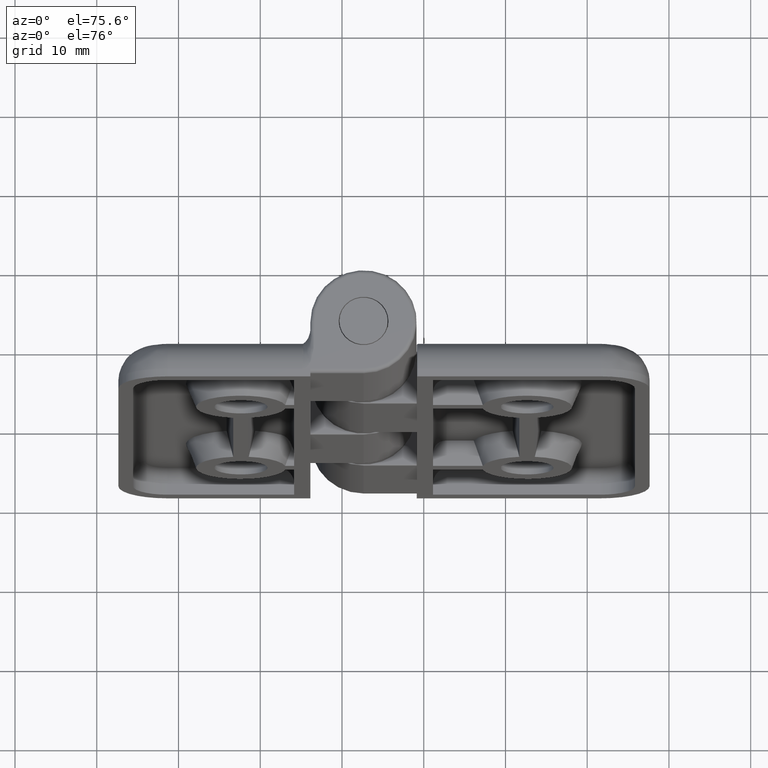
[diagram: clean part render]
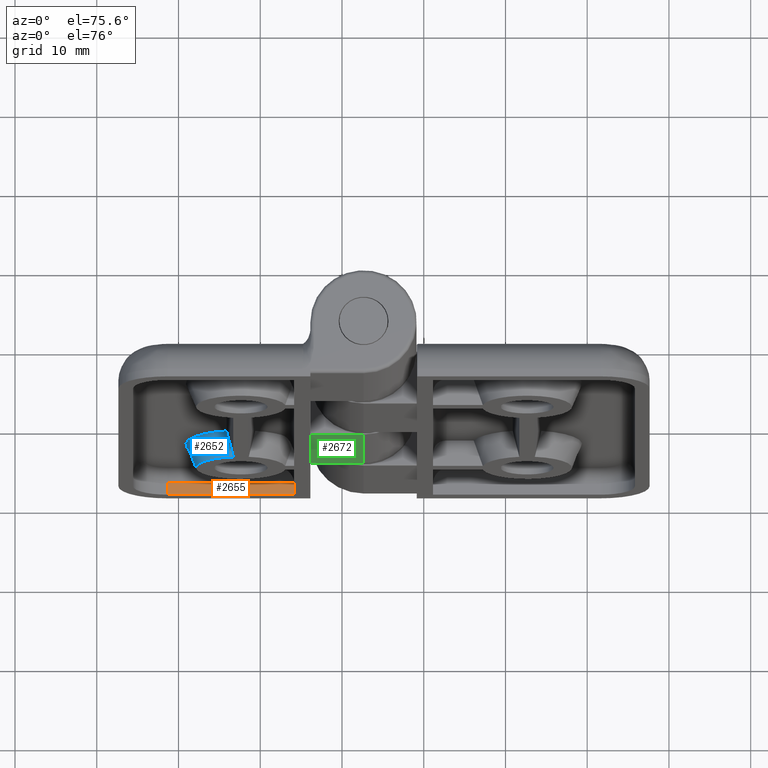
[diagram: same view with three faces highlighted in distinct colors, each labeled with its STEP entity id]
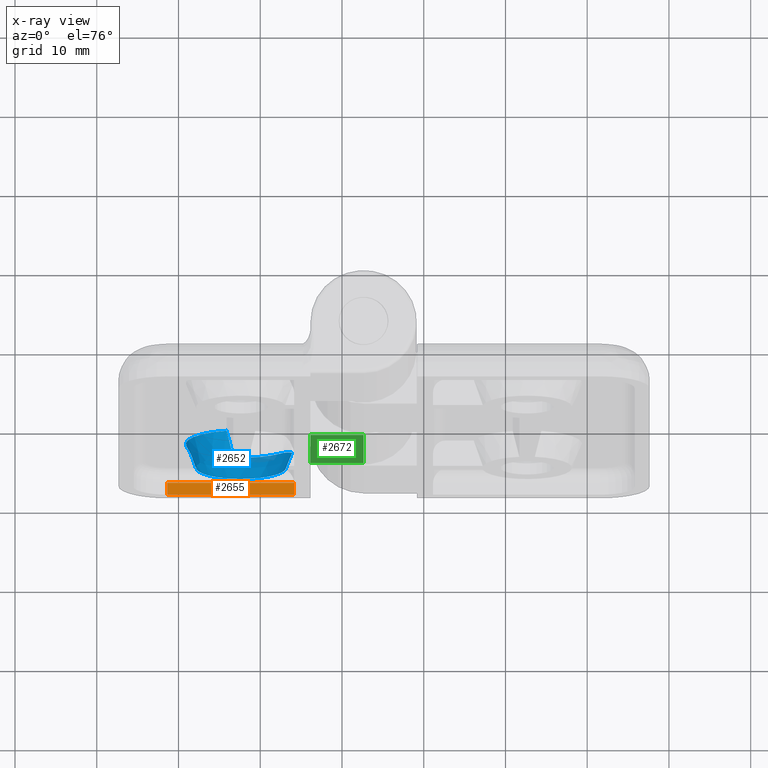
[diagram: x-ray of the same camera — body ghosted, the three highlighted faces saturated]
A machine part, auxiliary view with three faces highlighted in distinct colors.
The next image is the same camera in x-ray (body ghosted, the three faces saturated) — at least one of them is partly hidden behind the body in this view.
Their STEP definitions:

[orange] entity #2655 — the highlighted planar face has unit normal (0, 0, -1).
#127=PLANE('',#2846);
#385=FACE_OUTER_BOUND('',#553,.T.);
#553=EDGE_LOOP('',(#1849,#1850,#1851,#1852));
#781=LINE('',#4094,#959);
#790=LINE('',#4152,#968);
#792=LINE('',#4156,#970);
#793=LINE('',#4157,#971);
#959=VECTOR('',#3194,15.5);
#968=VECTOR('',#3241,1.5);
#970=VECTOR('',#3245,1.5);
#971=VECTOR('',#3246,15.5);
#1151=VERTEX_POINT('',#4072);
#1157=VERTEX_POINT('',#4092);
#1173=VERTEX_POINT('',#4151);
#1174=VERTEX_POINT('',#4155);
#1416=EDGE_CURVE('',#1157,#1151,#781,.T.);
#1439=EDGE_CURVE('',#1173,#1151,#790,.T.);
#1441=EDGE_CURVE('',#1174,#1157,#792,.T.);
#1442=EDGE_CURVE('',#1173,#1174,#793,.T.);
#1849=ORIENTED_EDGE('',*,*,#1416,.F.);
#1850=ORIENTED_EDGE('',*,*,#1441,.F.);
#1851=ORIENTED_EDGE('',*,*,#1442,.F.);
#1852=ORIENTED_EDGE('',*,*,#1439,.T.);
#2655=ADVANCED_FACE('',(#385),#127,.F.);
#2846=AXIS2_PLACEMENT_3D('',#4154,#3243,#3244);
#3194=DIRECTION('',(1.,2.22044604925031E-16,1.07440937866951E-16));
#3241=DIRECTION('',(0.,1.,0.));
#3243=DIRECTION('center_axis',(1.07440937866951E-16,0.,-1.));
#3244=DIRECTION('ref_axis',(-1.,0.,0.));
#3245=DIRECTION('',(0.,1.,0.));
#3246=DIRECTION('',(-1.,-3.30704730739408E-16,-1.07440937866951E-16));
#4072=CARTESIAN_POINT('',(-8.49999999999999,-5.50000000000001,-28.2));
#4092=CARTESIAN_POINT('',(-24.,-5.50000000000001,-28.2));
#4094=CARTESIAN_POINT('',(-13.1997099593932,-5.50000000000001,-28.2));
#4151=CARTESIAN_POINT('',(-8.49999999999999,-7.00000000000001,-28.2));
#4152=CARTESIAN_POINT('',(-8.49999999999999,-7.00000000000001,-28.2));
#4154=CARTESIAN_POINT('Origin',(-8.49999999999999,-7.00000000000001,-28.2));
#4155=CARTESIAN_POINT('',(-24.,-7.00000000000001,-28.2));
#4156=CARTESIAN_POINT('',(-24.,-7.00000000000001,-28.2));
#4157=CARTESIAN_POINT('',(-7.49999999999999,-7.,-28.2));

[blue] entity #2652 — the highlighted conical surface has half-angle 22.62 deg.
#191=CIRCLE('',#2842,5.5);
#192=CIRCLE('',#2843,6.75);
#345=(
BOUNDED_CURVE()
B_SPLINE_CURVE(2,(#4136,#4137,#4138),.UNSPECIFIED.,.F.,.F.)
B_SPLINE_CURVE_WITH_KNOTS((3,3),(0.0713577675570154,0.32952906795331),
 .UNSPECIFIED.)
CURVE()
GEOMETRIC_REPRESENTATION_ITEM()
RATIONAL_B_SPLINE_CURVE((1.00109624690064,1.00253122562395,1.))
REPRESENTATION_ITEM('')
);
#346=(
BOUNDED_CURVE()
B_SPLINE_CURVE(2,(#4142,#4143,#4144),.UNSPECIFIED.,.F.,.F.)
B_SPLINE_CURVE_WITH_KNOTS((3,3),(0.,0.32952906795331),.UNSPECIFIED.)
CURVE()
GEOMETRIC_REPRESENTATION_ITEM()
RATIONAL_B_SPLINE_CURVE((1.,1.00323084873992,1.))
REPRESENTATION_ITEM('')
);
#360=CONICAL_SURFACE('',#2841,6.75,0.394791119699761);
#382=FACE_OUTER_BOUND('',#550,.T.);
#550=EDGE_LOOP('',(#1836,#1837,#1838,#1839,#1840));
#750=B_SPLINE_CURVE_WITH_KNOTS('',3,(#4078,#4079,#4080,#4081,#4082,#4083,
#4084,#4085),.UNSPECIFIED.,.F.,.F.,(4,2,2,4),(-1.83353783690181,-1.72495387393073,
-1.59665591785783,-1.4963452121325),.UNSPECIFIED.);
#1153=VERTEX_POINT('',#4075);
#1154=VERTEX_POINT('',#4077);
#1169=VERTEX_POINT('',#4135);
#1170=VERTEX_POINT('',#4139);
#1171=VERTEX_POINT('',#4141);
#1411=EDGE_CURVE('',#1154,#1153,#750,.T.);
#1433=EDGE_CURVE('',#1153,#1169,#345,.T.);
#1434=EDGE_CURVE('',#1170,#1169,#191,.T.);
#1435=EDGE_CURVE('',#1170,#1171,#346,.T.);
#1436=EDGE_CURVE('',#1154,#1171,#192,.T.);
#1836=ORIENTED_EDGE('',*,*,#1411,.T.);
#1837=ORIENTED_EDGE('',*,*,#1433,.T.);
#1838=ORIENTED_EDGE('',*,*,#1434,.F.);
#1839=ORIENTED_EDGE('',*,*,#1435,.T.);
#1840=ORIENTED_EDGE('',*,*,#1436,.F.);
#2652=ADVANCED_FACE('',(#382),#360,.T.);
#2841=AXIS2_PLACEMENT_3D('',#4134,#3229,#3230);
#2842=AXIS2_PLACEMENT_3D('',#4140,#3231,#3232);
#2843=AXIS2_PLACEMENT_3D('',#4145,#3233,#3234);
#3229=DIRECTION('center_axis',(-2.22044604925031E-16,1.,0.));
#3230=DIRECTION('ref_axis',(-1.,-2.22044604925031E-16,0.));
#3231=DIRECTION('center_axis',(3.30704730739408E-16,-1.,0.));
#3232=DIRECTION('ref_axis',(-1.,-3.30704730739408E-16,0.));
#3233=DIRECTION('center_axis',(-2.22044604925031E-16,1.,0.));
#3234=DIRECTION('ref_axis',(-1.,-2.22044604925031E-16,0.));
#4075=CARTESIAN_POINT('',(-8.73264824739439,-4.69761634166224,-16.5630742646248));
#4077=CARTESIAN_POINT('',(-9.99999999999999,-4.00000000000001,-19.5345892868043));
#4078=CARTESIAN_POINT('Ctrl Pts',(-10.,-4.00000000000001,-19.5345892868043));
#4079=CARTESIAN_POINT('Ctrl Pts',(-9.76114024251889,-4.00000000000001,-19.2712139926225));
#4080=CARTESIAN_POINT('Ctrl Pts',(-9.56772308422603,-4.05245969198098,-18.9846397811656));
#4081=CARTESIAN_POINT('Ctrl Pts',(-9.20839512327924,-4.20834774742976,-18.319888163023));
#4082=CARTESIAN_POINT('Ctrl Pts',(-9.05647074092426,-4.3224626436187,-17.9350167485333));
#4083=CARTESIAN_POINT('Ctrl Pts',(-8.84982100860583,-4.52866251340564,-17.2177563511498));
#4084=CARTESIAN_POINT('Ctrl Pts',(-8.78168779784663,-4.620159180656,-16.8930747303043));
#4085=CARTESIAN_POINT('Ctrl Pts',(-8.73264824739438,-4.69761634166225,-16.5630742646248));
#4134=CARTESIAN_POINT('Origin',(-15.,-4.00000000000001,-15.));
#4135=CARTESIAN_POINT('',(-9.58199339304515,-7.,-15.9461524227066));
#4136=CARTESIAN_POINT('Ctrl Pts',(-8.73264824739439,-4.69761634166224,-16.5630742646248));
#4137=CARTESIAN_POINT('Ctrl Pts',(-9.180414456059,-5.9324820438733,-16.2321929969565));
#4138=CARTESIAN_POINT('Ctrl Pts',(-9.58199339304515,-7.00000000000001,-15.9461524227066));
#4139=CARTESIAN_POINT('',(-15.9461524227066,-7.00000000000001,-9.58199339304515));
#4140=CARTESIAN_POINT('Origin',(-15.,-7.00000000000001,-15.));
#4141=CARTESIAN_POINT('',(-16.75,-4.00000000000001,-8.48079759479735));
#4142=CARTESIAN_POINT('Ctrl Pts',(-15.9461524227066,-7.00000000000001,-9.58199339304515));
#4143=CARTESIAN_POINT('Ctrl Pts',(-16.3109991369032,-5.63837352564398,-9.06977670478631));
#4144=CARTESIAN_POINT('Ctrl Pts',(-16.75,-4.,-8.48079759479735));
#4145=CARTESIAN_POINT('Origin',(-15.,-4.00000000000001,-15.));

[green] entity #2672 — the highlighted planar face has unit normal (0, -1, 0).
#138=PLANE('',#2873);
#402=FACE_OUTER_BOUND('',#570,.T.);
#570=EDGE_LOOP('',(#1924,#1925,#1926,#1927));
#821=LINE('',#4324,#999);
#822=LINE('',#4326,#1000);
#823=LINE('',#4328,#1001);
#824=LINE('',#4329,#1002);
#999=VECTOR('',#3328,13.85);
#1000=VECTOR('',#3329,6.5);
#1001=VECTOR('',#3330,13.85);
#1002=VECTOR('',#3331,6.5);
#1205=VERTEX_POINT('',#4322);
#1206=VERTEX_POINT('',#4323);
#1207=VERTEX_POINT('',#4325);
#1208=VERTEX_POINT('',#4327);
#1486=EDGE_CURVE('',#1205,#1206,#821,.T.);
#1487=EDGE_CURVE('',#1207,#1206,#822,.T.);
#1488=EDGE_CURVE('',#1208,#1207,#823,.T.);
#1489=EDGE_CURVE('',#1205,#1208,#824,.T.);
#1924=ORIENTED_EDGE('',*,*,#1486,.T.);
#1925=ORIENTED_EDGE('',*,*,#1487,.F.);
#1926=ORIENTED_EDGE('',*,*,#1488,.F.);
#1927=ORIENTED_EDGE('',*,*,#1489,.F.);
#2672=ADVANCED_FACE('',(#402),#138,.T.);
#2873=AXIS2_PLACEMENT_3D('',#4321,#3326,#3327);
#3326=DIRECTION('center_axis',(3.41607084500048E-16,-1.,0.));
#3327=DIRECTION('ref_axis',(0.,0.,-1.));
#3328=DIRECTION('',(0.,0.,1.));
#3329=DIRECTION('',(1.,3.41607084500048E-16,0.));
#3330=DIRECTION('',(0.,0.,1.));
#3331=DIRECTION('',(-1.,-3.41607084500048E-16,0.));
#4321=CARTESIAN_POINT('Origin',(-1.19403062916867E-15,-6.5,0.));
#4322=CARTESIAN_POINT('',(-1.19403062916867E-15,-6.5,-14.55));
#4323=CARTESIAN_POINT('',(-1.19403062916867E-15,-6.5,-0.699999999999998));
#4324=CARTESIAN_POINT('',(-1.19403062916867E-15,-6.5,0.));
#4325=CARTESIAN_POINT('',(-6.5,-6.5,-0.699999999999998));
#4326=CARTESIAN_POINT('',(-3.25,-6.5,-0.699999999999998));
#4327=CARTESIAN_POINT('',(-6.5,-6.5,-14.55));
#4328=CARTESIAN_POINT('',(-6.5,-6.5,0.));
#4329=CARTESIAN_POINT('',(5.22299411743013,-6.5,-14.55));